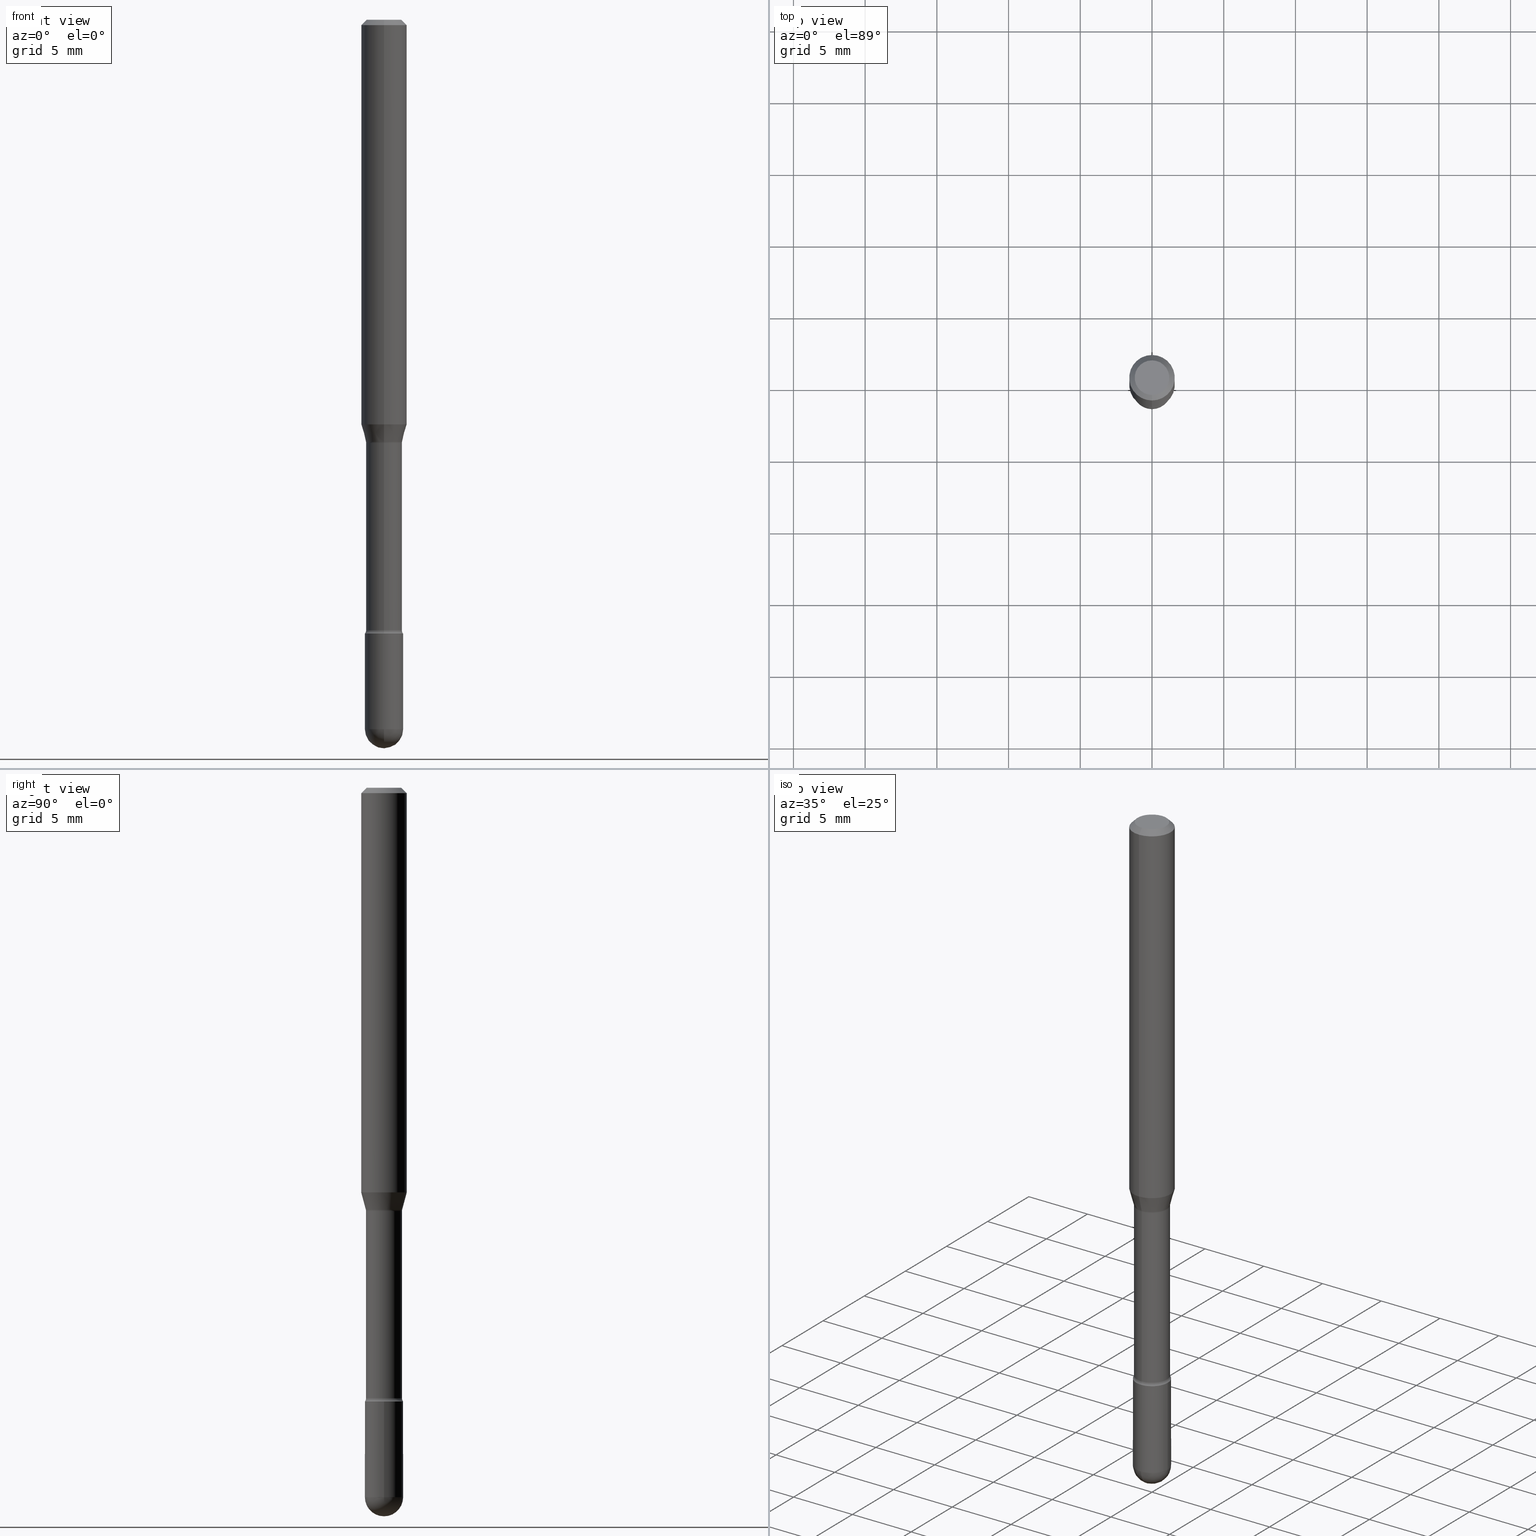
[diagram: canonical four-view strip — front | top / right | iso, engineering-drawing reading convention]
A machine part, canonical four-view strip (front | top / right | iso — engineering-drawing reading convention). The complete STEP part file that produces these views, byte-faithful:
ISO-10303-21;
HEADER;
FILE_DESCRIPTION (( 'STEP AP203' ),
    '1' );
FILE_NAME ('01607.STEP',
    '2024-04-09T20:08:57',
    ( '' ),
    ( '' ),
    'SwSTEP 2.0',
    'SolidWorks 2023',
    '' );
FILE_SCHEMA (( 'CONFIG_CONTROL_DESIGN' ));
ENDSEC;

DATA;
#1 = CARTESIAN_POINT ( 'NONE',  ( -1.169113584055446105E-44, 1.669184350826100908E-30, 4.780733988912460139E-16 ) ) ;
#2 = CARTESIAN_POINT ( 'NONE',  ( 3.666055405785701315E-16, 0.05249999999999411388, -1.685000000000000275 ) ) ;
#3 = ORIENTED_EDGE ( 'NONE', *, *, #530, .F. ) ;
#4 = DIRECTION ( 'NONE',  ( -1.807323732225323828E-15, -0.2588190451025172978, 0.9659258262890690894 ) ) ;
#5 = ADVANCED_FACE ( 'NONE', ( #303 ), #424, .T. ) ;
#6 = DIRECTION ( 'NONE',  ( -2.445419017493962135E-29, 3.491552639082703097E-15, 1.000000000000000000 ) ) ;
#7 = ORIENTED_EDGE ( 'NONE', *, *, #530, .T. ) ;
#8 = CIRCLE ( 'NONE', #218, 0.01500000000000001853 ) ;
#9 = DIRECTION ( 'NONE',  ( -6.982962677686265922E-15, -1.000000000000000000, 3.491552639082703097E-15 ) ) ;
#10 = DIMENSIONAL_EXPONENTS ( 1.000000000000000000, 0.000000000000000000, 0.000000000000000000, 0.000000000000000000, 0.000000000000000000, 0.000000000000000000, 0.000000000000000000 ) ;
#11 = ADVANCED_FACE ( 'NONE', ( #524 ), #273, .T. ) ;
#12 = ORIENTED_EDGE ( 'NONE', *, *, #94, .F. ) ;
#13 = DATE_AND_TIME ( #393, #283 ) ;
#14 = VECTOR ( 'NONE', #418, 39.37007874015748143 ) ;
#15 = APPLICATION_PROTOCOL_DEFINITION ( 'international standard', 'config_control_design', 1994, #286 ) ;
#16 = ADVANCED_FACE ( 'NONE', ( #566 ), #93, .T. ) ;
#17 = ORIENTED_EDGE ( 'NONE', *, *, #69, .F. ) ;
#18 = VERTEX_POINT ( 'NONE', #306 ) ;
#19 = ORIENTED_EDGE ( 'NONE', *, *, #90, .F. ) ;
#20 = DIRECTION ( 'NONE',  ( -2.445468806185136597E-29, 3.491481338843145583E-15, 1.000000000000000000 ) ) ;
#21 = EDGE_LOOP ( 'NONE', ( #528, #421, #219, #232 ) ) ;
#22 = CIRCLE ( 'NONE', #492, 0.05250000000000001887 ) ;
#23 = VERTEX_POINT ( 'NONE', #179 ) ;
#24 = TOROIDAL_SURFACE ( 'NONE', #34, 0.06435000000000000442, 0.01499999999999999424 ) ;
#25 = AXIS2_PLACEMENT_3D ( 'NONE', #251, #258, #429 ) ;
#26 = CARTESIAN_POINT ( 'NONE',  ( 4.762550500045553141E-29, -6.799659907397026191E-15, -1.947500000000000009 ) ) ;
#27 = ORIENTED_EDGE ( 'NONE', *, *, #69, .T. ) ;
#28 = CARTESIAN_POINT ( 'NONE',  ( 2.832021427887758735E-29, -4.043540930917242554E-15, -1.158092501787272965 ) ) ;
#29 = EDGE_CURVE ( 'NONE', #202, #407, #350, .T. ) ;
#30 = DIRECTION ( 'NONE',  ( -2.445419017493962696E-29, 3.491552639082703097E-15, 1.000000000000000000 ) ) ;
#31 = APPROVAL_STATUS ( 'not_yet_approved' ) ;
#32 = CARTESIAN_POINT ( 'NONE',  ( 2.023190811694401427E-45, -2.889378798979016049E-31, -8.274364531016640043E-17 ) ) ;
#33 = VECTOR ( 'NONE', #169, 39.37007874015748143 ) ;
#34 = AXIS2_PLACEMENT_3D ( 'NONE', #504, #114, #470 ) ;
#35 = CARTESIAN_POINT ( 'NONE',  ( 4.762550500045553141E-29, -6.799659907397026191E-15, -1.947500000000000009 ) ) ;
#36 = EDGE_CURVE ( 'NONE', #411, #57, #346, .T. ) ;
#37 = CARTESIAN_POINT ( 'NONE',  ( 3.730349362740937525E-16, 0.05249999999999412081, -1.685000000000000275 ) ) ;
#38 = DIRECTION ( 'NONE',  ( -6.982962677686265133E-15, -1.000000000000000000, 2.739457515990065205E-15 ) ) ;
#39 = DIRECTION ( 'NONE',  ( -6.982962677686265922E-15, -1.000000000000000000, 3.491552639082702703E-15 ) ) ;
#40 = DIRECTION ( 'NONE',  ( 2.445419017493962135E-29, -3.491552639082703097E-15, -1.000000000000000000 ) ) ;
#41 = AXIS2_PLACEMENT_3D ( 'NONE', #26, #20, #410 ) ;
#42 = ORIENTED_EDGE ( 'NONE', *, *, #79, .F. ) ;
#43 = DIRECTION ( 'NONE',  ( -6.982962677686266711E-15, -1.000000000000000000, 3.491552639082703097E-15 ) ) ;
#44 = DIRECTION ( 'NONE',  ( 1.000000000000000000, -7.105427357601001070E-15, 4.926316381718184256E-29 ) ) ;
#45 = LOCAL_TIME ( 16, 8, 57.00000000000000000, #506 ) ;
#46 = DIRECTION ( 'NONE',  ( -6.982962677686265133E-15, -1.000000000000000000, 2.767829780814856527E-15 ) ) ;
#47 = AXIS2_PLACEMENT_3D ( 'NONE', #35, #63, #325 ) ;
#48 = ORIENTED_EDGE ( 'NONE', *, *, #36, .F. ) ;
#49 = CIRCLE ( 'NONE', #313, 0.06250000000000000000 ) ;
#50 = ADVANCED_FACE ( 'NONE', ( #419 ), #213, .T. ) ;
#51 = CARTESIAN_POINT ( 'NONE',  ( 2.841515243112507928E-29, -4.057096135716831102E-15, -1.161974787463810665 ) ) ;
#52 = CARTESIAN_POINT ( 'NONE',  ( -4.493536483090706625E-16, -0.06435000000000590248, -1.675803397366418146 ) ) ;
#53 = MECHANICAL_CONTEXT ( 'NONE', #286, 'mechanical' ) ;
#54 = ORIENTED_EDGE ( 'NONE', *, *, #515, .F. ) ;
#55 = ORIENTED_EDGE ( 'NONE', *, *, #359, .T. ) ;
#56 = EDGE_CURVE ( 'NONE', #188, #315, #22, .T. ) ;
#57 = VERTEX_POINT ( 'NONE', #260 ) ;
#58 = AXIS2_PLACEMENT_3D ( 'NONE', #51, #138, #46 ) ;
#59 = ORIENTED_EDGE ( 'NONE', *, *, #249, .F. ) ;
#60 = DIRECTION ( 'NONE',  ( -6.982962677686262766E-15, -1.000000000000000000, 0.000000000000000000 ) ) ;
#61 = EDGE_LOOP ( 'NONE', ( #147, #341, #209, #476 ) ) ;
#62 = EDGE_LOOP ( 'NONE', ( #17, #328, #457, #19 ) ) ;
#63 = DIRECTION ( 'NONE',  ( -2.445468806185136597E-29, 3.491481338843145583E-15, 1.000000000000000000 ) ) ;
#64 = ORIENTED_EDGE ( 'NONE', *, *, #376, .F. ) ;
#65 = DATE_AND_TIME ( #468, #45 ) ;
#66 = CARTESIAN_POINT ( 'NONE',  ( 0.000000000000000000, 0.000000000000000000, 0.000000000000000000 ) ) ;
#67 = ORIENTED_EDGE ( 'NONE', *, *, #359, .F. ) ;
#68 = AXIS2_PLACEMENT_3D ( 'NONE', #206, #420, #38 ) ;
#69 = EDGE_CURVE ( 'NONE', #361, #229, #75, .T. ) ;
#70 = DIRECTION ( 'NONE',  ( -6.982962677686265133E-15, -1.000000000000000000, 2.739457515990065205E-15 ) ) ;
#71 = CIRCLE ( 'NONE', #142, 0.04986111260566397640 ) ;
#72 = CALENDAR_DATE ( 2024, 9, 4 ) ;
#73 = DIRECTION ( 'NONE',  ( -2.445419017493962696E-29, 3.491552639082703097E-15, 1.000000000000000000 ) ) ;
#74 = ORIENTED_EDGE ( 'NONE', *, *, #376, .T. ) ;
#75 = LINE ( 'NONE', #333, #501 ) ;
#76 = CARTESIAN_POINT ( 'NONE',  ( -4.364351673553645030E-16, -0.06250000000000388578, -1.110923531880468884 ) ) ;
#77 = ORIENTED_EDGE ( 'NONE', *, *, #176, .T. ) ;
#78 = CARTESIAN_POINT ( 'NONE',  ( 2.716673531842059463E-29, -3.878847989556329516E-15, -1.110923531880469106 ) ) ;
#79 = EDGE_CURVE ( 'NONE', #188, #357, #319, .T. ) ;
#80 = LINE ( 'NONE', #377, #275 ) ;
#81 = CARTESIAN_POINT ( 'NONE',  ( 4.572342504616528014E-16, 0.06434999999999593823, -1.161974787463811110 ) ) ;
#82 = MANIFOLD_SOLID_BREP ( 'Body-Move/Copy2[2]', #555 ) ;
#83 = CARTESIAN_POINT ( 'NONE',  ( 4.440892098500899305E-16, 0.06249999999999995143, -0.01500000000000030129 ) ) ;
#84 = DIRECTION ( 'NONE',  ( -6.982962677686265133E-15, -1.000000000000000000, 2.739457515990065205E-15 ) ) ;
#85 = DIRECTION ( 'NONE',  ( -6.982962677686265922E-15, -1.000000000000000000, 5.203519987931929940E-15 ) ) ;
#86 = MANIFOLD_SOLID_BREP ( 'Body-Move/Copy2[1]', #194 ) ;
#87 = CARTESIAN_POINT ( 'NONE',  ( -0.05249999999999999806, -5.968368045399809642E-15, -1.684999999999999831 ) ) ;
#88 = LOCAL_TIME ( 16, 8, 57.00000000000000000, #498 ) ;
#89 = ORIENTED_EDGE ( 'NONE', *, *, #373, .T. ) ;
#90 = EDGE_CURVE ( 'NONE', #229, #322, #183, .T. ) ;
#91 = CARTESIAN_POINT ( 'NONE',  ( 4.098124933558650876E-29, -5.851036289474794150E-15, -1.675803397366418368 ) ) ;
#92 = VECTOR ( 'NONE', #214, 39.37007874015748143 ) ;
#93 = SPHERICAL_SURFACE ( 'NONE', #288, 0.05250000000000001887 ) ;
#94 = EDGE_CURVE ( 'NONE', #358, #57, #489, .T. ) ;
#95 = FACE_OUTER_BOUND ( 'NONE', #225, .T. ) ;
#96 = CARTESIAN_POINT ( 'NONE',  ( 4.762550500045553141E-29, -6.799659907397026191E-15, -1.947500000000000009 ) ) ;
#97 = DIRECTION ( 'NONE',  ( -6.982962677686265922E-15, -1.000000000000000000, 3.491552639082703097E-15 ) ) ;
#98 = ADVANCED_FACE ( 'NONE', ( #436 ), #537, .T. ) ;
#99 = VERTEX_POINT ( 'NONE', #327 ) ;
#100 = DIRECTION ( 'NONE',  ( 0.000000000000000000, 0.000000000000000000, 1.000000000000000000 ) ) ;
#101 = AXIS2_PLACEMENT_3D ( 'NONE', #222, #447, #60 ) ;
#102 = CARTESIAN_POINT ( 'NONE',  ( -3.446092081437764548E-16, -0.04935000000000588222, -1.675803397366418146 ) ) ;
#103 = DIRECTION ( 'NONE',  ( -6.982962677686272233E-15, -1.000000000000000000, 0.000000000000000000 ) ) ;
#104 = ORIENTED_EDGE ( 'NONE', *, *, #120, .F. ) ;
#105 = LOCAL_TIME ( 16, 8, 57.00000000000000000, #110 ) ;
#106 =( CONVERSION_BASED_UNIT ( 'INCH', #437 ) LENGTH_UNIT ( ) NAMED_UNIT ( #10 ) );
#107 = EDGE_CURVE ( 'NONE', #544, #322, #80, .T. ) ;
#108 = ORIENTED_EDGE ( 'NONE', *, *, #554, .T. ) ;
#109 = AXIS2_PLACEMENT_3D ( 'NONE', #28, #458, #70 ) ;
#110 = COORDINATED_UNIVERSAL_TIME_OFFSET ( 5, 0, .BEHIND. ) ;
#111 = DIRECTION ( 'NONE',  ( -2.445468806185136597E-29, 3.491481338843145583E-15, 1.000000000000000000 ) ) ;
#112 = ORIENTED_EDGE ( 'NONE', *, *, #469, .F. ) ;
#113 = EDGE_LOOP ( 'NONE', ( #467, #276 ) ) ;
#114 = DIRECTION ( 'NONE',  ( -2.445419017493962696E-29, 3.491552639082703097E-15, 1.000000000000000000 ) ) ;
#115 = CALENDAR_DATE ( 2024, 9, 4 ) ;
#116 = CARTESIAN_POINT ( 'NONE',  ( -3.773273898774340269E-16, -0.04749999999999999362, 8.310510504626197352E-17 ) ) ;
#117 = PLANE ( 'NONE',  #265 ) ;
#118 = AXIS2_PLACEMENT_3D ( 'NONE', #535, #431, #220 ) ;
#119 = LINE ( 'NONE', #247, #563 ) ;
#120 = EDGE_CURVE ( 'NONE', #245, #167, #391, .T. ) ;
#121 = DATE_TIME_ROLE ( 'creation_date' ) ;
#122 = DIRECTION ( 'NONE',  ( -2.445419017493962696E-29, 3.491552639082703097E-15, 1.000000000000000000 ) ) ;
#123 = ORIENTED_EDGE ( 'NONE', *, *, #249, .T. ) ;
#124 = PRODUCT_DEFINITION_FORMATION_WITH_SPECIFIED_SOURCE ( 'ANY', '', #262, .NOT_KNOWN. ) ;
#125 = DIRECTION ( 'NONE',  ( -6.982962677686265133E-15, -1.000000000000000000, 5.535659561629709110E-15 ) ) ;
#126 = AXIS2_PLACEMENT_3D ( 'NONE', #198, #368, #551 ) ;
#127 = AXIS2_PLACEMENT_3D ( 'NONE', #263, #100, #349 ) ;
#128 = DIRECTION ( 'NONE',  ( -2.445468806185136597E-29, 3.491481338843145583E-15, 1.000000000000000000 ) ) ;
#129 = CC_DESIGN_DATE_AND_TIME_ASSIGNMENT ( #497, #121, ( #412 ) ) ;
#130 = CARTESIAN_POINT ( 'NONE',  ( 4.572342504616658176E-16, 0.06434999999999421738, -1.675803397366418590 ) ) ;
#131 = DIRECTION ( 'NONE',  ( 1.000000000000000000, -7.105427357601001070E-15, 4.926316381718184256E-29 ) ) ;
#132 = DESIGN_CONTEXT ( 'detailed design', #435, 'design' ) ;
#133 = SECURITY_CLASSIFICATION ( '', '', #149 ) ;
#134 = DIRECTION ( 'NONE',  ( -2.445419017493962696E-29, 3.491552639082703097E-15, 1.000000000000000000 ) ) ;
#135 = ORIENTED_EDGE ( 'NONE', *, *, #56, .F. ) ;
#136 = CARTESIAN_POINT ( 'NONE',  ( -4.364351673553916201E-16, -0.06250000000000000000, 6.962954388339150068E-16 ) ) ;
#137 = AXIS2_PLACEMENT_3D ( 'NONE', #305, #128, #345 ) ;
#138 = DIRECTION ( 'NONE',  ( -2.445419017493962696E-29, 3.491552639082703097E-15, 1.000000000000000000 ) ) ;
#139 = DIRECTION ( 'NONE',  ( -7.105427357601001070E-15, -1.000000000000000000, 0.000000000000000000 ) ) ;
#140 = APPLICATION_PROTOCOL_DEFINITION ( 'international standard', 'config_control_design', 1994, #435 ) ;
#141 = AXIS2_PLACEMENT_3D ( 'NONE', #2, #6, #9 ) ;
#142 = AXIS2_PLACEMENT_3D ( 'NONE', #173, #389, #266 ) ;
#143 = PERSON_AND_ORGANIZATION_ROLE ( 'creator' ) ;
#144 = DIRECTION ( 'NONE',  ( 2.445419017493962696E-29, -3.491552639082703097E-15, -1.000000000000000000 ) ) ;
#145 = ORIENTED_EDGE ( 'NONE', *, *, #543, .T. ) ;
#146 = ORIENTED_EDGE ( 'NONE', *, *, #385, .T. ) ;
#147 = ORIENTED_EDGE ( 'NONE', *, *, #231, .F. ) ;
#148 = CC_DESIGN_PERSON_AND_ORGANIZATION_ASSIGNMENT ( #310, #353, ( #262 ) ) ;
#149 = SECURITY_CLASSIFICATION_LEVEL ( 'unclassified' ) ;
#150 = CARTESIAN_POINT ( 'NONE',  ( 0.05249999999999999806, -6.708008522252392915E-15, -1.947500000000000009 ) ) ;
#151 = EDGE_LOOP ( 'NONE', ( #55, #237 ) ) ;
#152 = ORIENTED_EDGE ( 'NONE', *, *, #515, .T. ) ;
#153 = AXIS2_PLACEMENT_3D ( 'NONE', #91, #302, #43 ) ;
#154 = PERSON_AND_ORGANIZATION ( #564, #172 ) ;
#155 = EDGE_CURVE ( 'NONE', #452, #18, #460, .T. ) ;
#156 = CARTESIAN_POINT ( 'NONE',  ( 2.716673531842059463E-29, -3.878847989556329516E-15, -1.110923531880469106 ) ) ;
#157 = DIRECTION ( 'NONE',  ( -6.982962677686265922E-15, -1.000000000000000000, 4.370956789862821150E-15 ) ) ;
#158 = ADVANCED_FACE ( 'NONE', ( #510 ), #388, .F. ) ;
#159 = CARTESIAN_POINT ( 'NONE',  ( 4.762550500045553141E-29, -6.799659907397026191E-15, -1.947500000000000009 ) ) ;
#160 = TOROIDAL_SURFACE ( 'NONE', #153, 0.06435000000000005993, 0.01500000000000002373 ) ;
#161 = CARTESIAN_POINT ( 'NONE',  ( 4.893182423879369018E-29, -6.979747979838529872E-15, -2.000000000000000000 ) ) ;
#162 = ORIENTED_EDGE ( 'NONE', *, *, #231, .T. ) ;
#163 = CARTESIAN_POINT ( 'NONE',  ( 3.618438881858721251E-16, 0.04934999999999418324, -1.675803397366418590 ) ) ;
#164 = CARTESIAN_POINT ( 'NONE',  ( 4.120531044477326500E-29, -5.883266196854354565E-15, -1.684999999999999831 ) ) ;
#165 = CIRCLE ( 'NONE', #297, 0.04934999999999999803 ) ;
#166 = AXIS2_PLACEMENT_3D ( 'NONE', #182, #494, #97 ) ;
#167 = VERTEX_POINT ( 'NONE', #561 ) ;
#168 = DIRECTION ( 'NONE',  ( 1.000000000000000000, -6.982962677686268288E-15, 0.000000000000000000 ) ) ;
#169 = DIRECTION ( 'NONE',  ( -2.445419017493962696E-29, 3.491552639082703097E-15, 1.000000000000000000 ) ) ;
#170 = CARTESIAN_POINT ( 'NONE',  ( -1.169113584055446105E-44, 1.669184350826100908E-30, 4.780733988912460139E-16 ) ) ;
#171 = DIRECTION ( 'NONE',  ( 7.105427357601001859E-15, 1.000000000000000000, 0.000000000000000000 ) ) ;
#172 = ORGANIZATION ( 'UNSPECIFIED', 'UNSPECIFIED', '' ) ;
#173 = CARTESIAN_POINT ( 'NONE',  ( 2.832021427887758735E-29, -4.043540930917242554E-15, -1.158092501787272965 ) ) ;
#174 = VECTOR ( 'NONE', #531, 39.37007874015748143 ) ;
#175 = DIRECTION ( 'NONE',  ( 6.982962677686265133E-15, 1.000000000000000000, -5.203519987931927573E-15 ) ) ;
#176 = EDGE_CURVE ( 'NONE', #18, #452, #290, .T. ) ;
#177 = ORIENTED_EDGE ( 'NONE', *, *, #496, .F. ) ;
#178 = APPROVAL_DATE_TIME ( #13, #192 ) ;
#179 = CARTESIAN_POINT ( 'NONE',  ( -4.364351673553912750E-16, -0.06250000000000005551, -0.01499999999999986587 ) ) ;
#180 = ORIENTED_EDGE ( 'NONE', *, *, #430, .F. ) ;
#181 = ORIENTED_EDGE ( 'NONE', *, *, #496, .T. ) ;
#182 = CARTESIAN_POINT ( 'NONE',  ( 2.841573096316353332E-29, -4.057013286636126142E-15, -1.161974787463810888 ) ) ;
#183 = CIRCLE ( 'NONE', #58, 0.04934999999999999803 ) ;
#184 = CIRCLE ( 'NONE', #47, 0.05249999999999999806 ) ;
#185 = ADVANCED_FACE ( 'NONE', ( #195 ), #117, .T. ) ;
#186 = ORIENTED_EDGE ( 'NONE', *, *, #107, .F. ) ;
#187 = DIRECTION ( 'NONE',  ( -1.000000000000000000, 6.982962677686265922E-15, -4.883557194083112901E-29 ) ) ;
#188 = VERTEX_POINT ( 'NONE', #161 ) ;
#189 = ORIENTED_EDGE ( 'NONE', *, *, #120, .T. ) ;
#190 = ORIENTED_EDGE ( 'NONE', *, *, #223, .F. ) ;
#191 = APPROVAL_PERSON_ORGANIZATION ( #490, #192, #432 ) ;
#192 = APPROVAL ( #312, 'UNSPECIFIED' ) ;
#193 = DIRECTION ( 'NONE',  ( -2.445468806185136597E-29, 3.491481338843145583E-15, 1.000000000000000000 ) ) ;
#194 = CLOSED_SHELL ( 'NONE', ( #50, #347, #185, #16, #252 ) ) ;
#195 = FACE_OUTER_BOUND ( 'NONE', #151, .T. ) ;
#196 = CIRCLE ( 'NONE', #502, 0.04935000000000003273 ) ;
#197 = FACE_OUTER_BOUND ( 'NONE', #21, .T. ) ;
#198 = CARTESIAN_POINT ( 'NONE',  ( 4.120531044477326500E-29, -5.883266196854354565E-15, -1.684999999999999831 ) ) ;
#199 = ADVANCED_FACE ( 'NONE', ( #197 ), #239, .T. ) ;
#200 = DIRECTION ( 'NONE',  ( -2.445419017493962696E-29, 3.491552639082703097E-15, 1.000000000000000000 ) ) ;
#201 = ADVANCED_FACE ( 'NONE', ( #550 ), #24, .F. ) ;
#202 = VERTEX_POINT ( 'NONE', #451 ) ;
#203 = DIRECTION ( 'NONE',  ( -2.445419017493962696E-29, 3.491552639082703097E-15, 1.000000000000000000 ) ) ;
#204 = DIRECTION ( 'NONE',  ( -6.982962677686266711E-15, -1.000000000000000000, 3.491552639082704281E-15 ) ) ;
#205 = EDGE_LOOP ( 'NONE', ( #135, #402, #59, #459 ) ) ;
#206 = CARTESIAN_POINT ( 'NONE',  ( 2.832021427887758735E-29, -4.043540930917242554E-15, -1.158092501787272965 ) ) ;
#207 = DIRECTION ( 'NONE',  ( -2.445468806185136597E-29, 3.491481338843145583E-15, 1.000000000000000000 ) ) ;
#208 = AXIS2_PLACEMENT_3D ( 'NONE', #32, #203, #557 ) ;
#209 = ORIENTED_EDGE ( 'NONE', *, *, #269, .T. ) ;
#210 = CARTESIAN_POINT ( 'NONE',  ( 4.762550500045553141E-29, -6.799659907397026191E-15, -1.947500000000000009 ) ) ;
#211 = DIRECTION ( 'NONE',  ( -2.445419017493962696E-29, 3.491552639082703097E-15, 1.000000000000000000 ) ) ;
#212 = FACE_OUTER_BOUND ( 'NONE', #62, .T. ) ;
#213 = CYLINDRICAL_SURFACE ( 'NONE', #264, 0.05249999999999999806 ) ;
#214 = DIRECTION ( 'NONE',  ( -2.445468806185136877E-29, 3.491481338843145188E-15, 1.000000000000000000 ) ) ;
#215 = PLANE ( 'NONE',  #473 ) ;
#216 = CC_DESIGN_APPROVAL ( #304, ( #124 ) ) ;
#217 = EDGE_CURVE ( 'NONE', #358, #315, #184, .T. ) ;
#218 = AXIS2_PLACEMENT_3D ( 'NONE', #130, #44, #562 ) ;
#219 = ORIENTED_EDGE ( 'NONE', *, *, #269, .F. ) ;
#220 = DIRECTION ( 'NONE',  ( 6.982962677686265922E-15, 1.000000000000000000, -3.483106191921935554E-15 ) ) ;
#221 = CIRCLE ( 'NONE', #137, 0.05249999999999999806 ) ;
#222 = CARTESIAN_POINT ( 'NONE',  ( -4.493536483090827913E-16, -0.06435000000000405673, -1.161974787463810443 ) ) ;
#223 = EDGE_CURVE ( 'NONE', #322, #229, #165, .T. ) ;
#224 = COORDINATED_UNIVERSAL_TIME_OFFSET ( 5, 0, .BEHIND. ) ;
#225 = EDGE_LOOP ( 'NONE', ( #379, #162 ) ) ;
#226 =( NAMED_UNIT ( * ) PLANE_ANGLE_UNIT ( ) SI_UNIT ( $, .RADIAN. ) );
#227 = AXIS2_PLACEMENT_3D ( 'NONE', #210, #522, #384 ) ;
#228 = ORIENTED_EDGE ( 'NONE', *, *, #554, .F. ) ;
#229 = VERTEX_POINT ( 'NONE', #234 ) ;
#230 = PERSON_AND_ORGANIZATION ( #564, #172 ) ;
#231 = EDGE_CURVE ( 'NONE', #277, #242, #250, .T. ) ;
#232 = ORIENTED_EDGE ( 'NONE', *, *, #385, .F. ) ;
#233 = ORIENTED_EDGE ( 'NONE', *, *, #223, .T. ) ;
#234 = CARTESIAN_POINT ( 'NONE',  ( 3.506528400976504978E-16, 0.04934999999999594572, -1.161974787463810888 ) ) ;
#235 = ORIENTED_EDGE ( 'NONE', *, *, #543, .F. ) ;
#236 = EDGE_CURVE ( 'NONE', #242, #277, #446, .T. ) ;
#237 = ORIENTED_EDGE ( 'NONE', *, *, #36, .T. ) ;
#238 = DATE_AND_TIME ( #72, #105 ) ;
#239 = CYLINDRICAL_SURFACE ( 'NONE', #240, 0.06250000000000000000 ) ;
#240 = AXIS2_PLACEMENT_3D ( 'NONE', #279, #30, #334 ) ;
#241 = CIRCLE ( 'NONE', #546, 0.01500000000000001853 ) ;
#242 = VERTEX_POINT ( 'NONE', #371 ) ;
#243 = DATE_TIME_ROLE ( 'classification_date' ) ;
#244 = DIRECTION ( 'NONE',  ( -6.982962677686265922E-15, -1.000000000000000000, 4.370956789862821150E-15 ) ) ;
#245 = VERTEX_POINT ( 'NONE', #513 ) ;
#246 = APPROVAL_ROLE ( '' ) ;
#247 = CARTESIAN_POINT ( 'NONE',  ( 4.364351673553919652E-16, 0.06249999999999995143, -0.01500000000000030129 ) ) ;
#248 = DIRECTION ( 'NONE',  ( -1.000000000000000000, 6.982962677686265133E-15, -4.883557194083112340E-29 ) ) ;
#249 = EDGE_CURVE ( 'NONE', #99, #357, #556, .T. ) ;
#250 = CIRCLE ( 'NONE', #208, 0.04749999999999999362 ) ;
#251 = CARTESIAN_POINT ( 'NONE',  ( 4.098124933558650876E-29, -5.851036289474794150E-15, -1.675803397366418368 ) ) ;
#252 = ADVANCED_FACE ( 'NONE', ( #517 ), #466, .T. ) ;
#253 = FACE_OUTER_BOUND ( 'NONE', #505, .T. ) ;
#254 = ORIENTED_EDGE ( 'NONE', *, *, #527, .T. ) ;
#255 = LINE ( 'NONE', #257, #474 ) ;
#256 = AXIS2_PLACEMENT_3D ( 'NONE', #159, #248, #375 ) ;
#257 = CARTESIAN_POINT ( 'NONE',  ( -4.287811248607203282E-16, -0.06250000000000005551, -0.01499999999999986587 ) ) ;
#258 = DIRECTION ( 'NONE',  ( -2.445419017493962696E-29, 3.491552639082703097E-15, 1.000000000000000000 ) ) ;
#259 = DIRECTION ( 'NONE',  ( -1.000000000000000000, 6.982962677686265133E-15, -4.883557194083112340E-29 ) ) ;
#260 = CARTESIAN_POINT ( 'NONE',  ( 0.05249999999999999806, -6.249751596529228901E-15, -1.684999999999999831 ) ) ;
#261 = CARTESIAN_POINT ( 'NONE',  ( 0.05249999999999999806, -3.666055405785289629E-16, 2.559992807292866011E-30 ) ) ;
#262 = PRODUCT ( '01607', '01607', '', ( #53 ) ) ;
#263 = CARTESIAN_POINT ( 'NONE',  ( 0.000000000000000000, 0.000000000000000000, 0.000000000000000000 ) ) ;
#264 = AXIS2_PLACEMENT_3D ( 'NONE', #520, #207, #488 ) ;
#265 = AXIS2_PLACEMENT_3D ( 'NONE', #433, #394, #552 ) ;
#266 = DIRECTION ( 'NONE',  ( -6.982962677686265133E-15, -1.000000000000000000, 2.739457515990065205E-15 ) ) ;
#267 = AXIS2_PLACEMENT_3D ( 'NONE', #81, #131, #171 ) ;
#268 = ORIENTED_EDGE ( 'NONE', *, *, #56, .T. ) ;
#269 = EDGE_CURVE ( 'NONE', #23, #407, #348, .T. ) ;
#270 = EDGE_LOOP ( 'NONE', ( #42, #268, #289, #441 ) ) ;
#271 = FACE_OUTER_BOUND ( 'NONE', #427, .T. ) ;
#272 = CARTESIAN_POINT ( 'NONE',  ( 3.668128526240963907E-31, -5.237328958624083464E-17, -0.01500000000000008271 ) ) ;
#273 = CONICAL_SURFACE ( 'NONE', #521, 0.04986111260566397640, 0.2617993877991494078 ) ;
#274 = EDGE_CURVE ( 'NONE', #281, #202, #320, .T. ) ;
#275 = VECTOR ( 'NONE', #284, 39.37007874015748143 ) ;
#276 = ORIENTED_EDGE ( 'NONE', *, *, #155, .F. ) ;
#277 = VERTEX_POINT ( 'NONE', #116 ) ;
#278 = ORIENTED_EDGE ( 'NONE', *, *, #344, .T. ) ;
#279 = CARTESIAN_POINT ( 'NONE',  ( -1.169113584055446105E-44, 1.669184350826100908E-30, 4.780733988912460139E-16 ) ) ;
#280 = EDGE_CURVE ( 'NONE', #361, #544, #355, .T. ) ;
#281 = VERTEX_POINT ( 'NONE', #76 ) ;
#282 = DIRECTION ( 'NONE',  ( -6.982962677686265133E-15, -1.000000000000000000, 2.767829780814856527E-15 ) ) ;
#283 = LOCAL_TIME ( 16, 8, 57.00000000000000000, #224 ) ;
#284 = DIRECTION ( 'NONE',  ( -2.445419017493962696E-29, 3.491552639082703097E-15, 1.000000000000000000 ) ) ;
#285 = SHAPE_DEFINITION_REPRESENTATION ( #352, #422 ) ;
#286 = APPLICATION_CONTEXT ( 'configuration controlled 3d designs of mechanical parts and assemblies' ) ;
#287 = CARTESIAN_POINT ( 'NONE',  ( 3.666055405785766396E-16, 0.05249999999999320488, -1.947500000000000231 ) ) ;
#288 = AXIS2_PLACEMENT_3D ( 'NONE', #314, #259, #175 ) ;
#289 = ORIENTED_EDGE ( 'NONE', *, *, #217, .F. ) ;
#290 = CIRCLE ( 'NONE', #523, 0.05249999999999999806 ) ;
#291 = PERSON_AND_ORGANIZATION ( #564, #172 ) ;
#292 = ORIENTED_EDGE ( 'NONE', *, *, #442, .F. ) ;
#293 = CARTESIAN_POINT ( 'NONE',  ( -3.730349362740049563E-16, -0.05250000000000679817, -1.947499999999999565 ) ) ;
#294 = CARTESIAN_POINT ( 'NONE',  ( -3.446092081437888300E-16, -0.04935000000000405035, -1.161974787463810443 ) ) ;
#295 = LOCAL_TIME ( 16, 8, 57.00000000000000000, #363 ) ;
#296 = CYLINDRICAL_SURFACE ( 'NONE', #493, 0.04935000000000001191 ) ;
#297 = AXIS2_PLACEMENT_3D ( 'NONE', #549, #329, #282 ) ;
#298 = CONICAL_SURFACE ( 'NONE', #565, 0.06250000000000000000, 0.7853981633974483900 ) ;
#299 = CARTESIAN_POINT ( 'NONE',  ( -0.05249999999999999806, 3.730349362740525838E-16, -2.582440922383825311E-30 ) ) ;
#300 = ORIENTED_EDGE ( 'NONE', *, *, #29, .F. ) ;
#301 = EDGE_LOOP ( 'NONE', ( #300, #278, #146, #235 ) ) ;
#302 = DIRECTION ( 'NONE',  ( -2.445419017493962696E-29, 3.491552639082703097E-15, 1.000000000000000000 ) ) ;
#303 = FACE_OUTER_BOUND ( 'NONE', #301, .T. ) ;
#304 = APPROVAL ( #324, 'UNSPECIFIED' ) ;
#305 = CARTESIAN_POINT ( 'NONE',  ( 4.762550500045553141E-29, -6.799659907397026191E-15, -1.947500000000000009 ) ) ;
#306 = CARTESIAN_POINT ( 'NONE',  ( -3.666055405784878435E-16, -0.05250000000000587530, -1.684999999999999609 ) ) ;
#307 = CIRCLE ( 'NONE', #372, 0.06250000000000000000 ) ;
#308 = LINE ( 'NONE', #378, #340 ) ;
#309 = DIRECTION ( 'NONE',  ( 1.000000000000000000, -6.982962677686265922E-15, 4.883557194083112340E-29 ) ) ;
#310 = PERSON_AND_ORGANIZATION ( #564, #172 ) ;
#311 = AXIS2_PLACEMENT_3D ( 'NONE', #455, #200, #406 ) ;
#312 = APPROVAL_STATUS ( 'not_yet_approved' ) ;
#313 = AXIS2_PLACEMENT_3D ( 'NONE', #272, #491, #534 ) ;
#314 = CARTESIAN_POINT ( 'NONE',  ( 4.762550500045553141E-29, -6.799659907397026191E-15, -1.947500000000000009 ) ) ;
#315 = VERTEX_POINT ( 'NONE', #287 ) ;
#316 = CALENDAR_DATE ( 2024, 9, 4 ) ;
#317 = ORIENTED_EDGE ( 'NONE', *, *, #236, .F. ) ;
#318 = EDGE_LOOP ( 'NONE', ( #54, #189, #354, #356 ) ) ;
#319 = CIRCLE ( 'NONE', #390, 0.05250000000000001887 ) ;
#320 = CIRCLE ( 'NONE', #331, 0.06250000000000000000 ) ;
#321 = CARTESIAN_POINT ( 'NONE',  ( 4.120614938421955121E-29, -5.883146055950699741E-15, -1.684999999999999831 ) ) ;
#322 = VERTEX_POINT ( 'NONE', #294 ) ;
#323 = CARTESIAN_POINT ( 'NONE',  ( 4.098041497500830929E-29, -5.851155774658477044E-15, -1.675803397366418368 ) ) ;
#324 = APPROVAL_STATUS ( 'not_yet_approved' ) ;
#325 = DIRECTION ( 'NONE',  ( 1.000000000000000000, -6.982962677686268288E-15, 0.000000000000000000 ) ) ;
#326 = EDGE_CURVE ( 'NONE', #242, #407, #119, .T. ) ;
#327 = CARTESIAN_POINT ( 'NONE',  ( -0.05249999999999999806, -5.968368045399809642E-15, -1.947500000000000009 ) ) ;
#328 = ORIENTED_EDGE ( 'NONE', *, *, #280, .T. ) ;
#329 = DIRECTION ( 'NONE',  ( -2.445419017493962696E-29, 3.491552639082703097E-15, 1.000000000000000000 ) ) ;
#330 = AXIS2_PLACEMENT_3D ( 'NONE', #486, #525, #332 ) ;
#331 = AXIS2_PLACEMENT_3D ( 'NONE', #156, #509, #157 ) ;
#332 = DIRECTION ( 'NONE',  ( 1.000000000000000000, -6.982962677686268288E-15, 0.000000000000000000 ) ) ;
#333 = CARTESIAN_POINT ( 'NONE',  ( 3.506528400976094771E-16, 0.04935000000000001191, 3.057652761525145900E-16 ) ) ;
#334 = DIRECTION ( 'NONE',  ( -6.982962677686265922E-15, -1.000000000000000000, 3.491552639082702703E-15 ) ) ;
#335 = FACE_OUTER_BOUND ( 'NONE', #465, .T. ) ;
#336 = APPROVAL_PERSON_ORGANIZATION ( #230, #499, #369 ) ;
#337 = CYLINDRICAL_SURFACE ( 'NONE', #483, 0.04935000000000001191 ) ;
#338 = AXIS2_PLACEMENT_3D ( 'NONE', #1, #211, #39 ) ;
#339 = CONICAL_SURFACE ( 'NONE', #68, 0.04986111260566397640, 0.2617993877991494078 ) ;
#340 = VECTOR ( 'NONE', #519, 39.37007874015748854 ) ;
#341 = ORIENTED_EDGE ( 'NONE', *, *, #469, .T. ) ;
#342 = FACE_OUTER_BOUND ( 'NONE', #514, .T. ) ;
#343 = DIRECTION ( 'NONE',  ( -2.445419017493962696E-29, 3.491552639082703097E-15, 1.000000000000000000 ) ) ;
#344 = EDGE_CURVE ( 'NONE', #202, #281, #307, .T. ) ;
#345 = DIRECTION ( 'NONE',  ( 1.000000000000000000, -6.982962677686268288E-15, 0.000000000000000000 ) ) ;
#346 = CIRCLE ( 'NONE', #330, 0.05249999999999999806 ) ;
#347 = ADVANCED_FACE ( 'NONE', ( #413 ), #370, .T. ) ;
#348 = CIRCLE ( 'NONE', #425, 0.06250000000000000000 ) ;
#349 = DIRECTION ( 'NONE',  ( 1.000000000000000000, 0.000000000000000000, 0.000000000000000000 ) ) ;
#350 = LINE ( 'NONE', #439, #33 ) ;
#351 = CARTESIAN_POINT ( 'NONE',  ( 3.668128526240963907E-31, -5.237328958624083464E-17, -0.01500000000000008271 ) ) ;
#352 = PRODUCT_DEFINITION_SHAPE ( 'NONE', 'NONE',  #412 ) ;
#353 = PERSON_AND_ORGANIZATION_ROLE ( 'design_owner' ) ;
#354 = ORIENTED_EDGE ( 'NONE', *, *, #430, .T. ) ;
#355 = CIRCLE ( 'NONE', #417, 0.04935000000000003273 ) ;
#356 = ORIENTED_EDGE ( 'NONE', *, *, #344, .F. ) ;
#357 = VERTEX_POINT ( 'NONE', #293 ) ;
#358 = VERTEX_POINT ( 'NONE', #150 ) ;
#359 = EDGE_CURVE ( 'NONE', #57, #411, #512, .T. ) ;
#360 = CARTESIAN_POINT ( 'NONE',  ( 4.762550500045553141E-29, -6.799659907397026191E-15, -1.947500000000000009 ) ) ;
#361 = VERTEX_POINT ( 'NONE', #163 ) ;
#362 = ORIENTED_EDGE ( 'NONE', *, *, #485, .T. ) ;
#363 = COORDINATED_UNIVERSAL_TIME_OFFSET ( 5, 0, .BEHIND. ) ;
#364 =( GEOMETRIC_REPRESENTATION_CONTEXT ( 3 ) GLOBAL_UNCERTAINTY_ASSIGNED_CONTEXT ( ( #482 ) ) GLOBAL_UNIT_ASSIGNED_CONTEXT ( ( #106, #226, #541 ) ) REPRESENTATION_CONTEXT ( 'NONE', 'WORKASPACE' ) );
#365 = DIRECTION ( 'NONE',  ( -2.445419017493962696E-29, 3.491552639082703097E-15, 1.000000000000000000 ) ) ;
#366 = ORIENTED_EDGE ( 'NONE', *, *, #326, .T. ) ;
#367 = DIRECTION ( 'NONE',  ( 1.000000000000000000, -6.982962677686265922E-15, 4.876176775795935232E-29 ) ) ;
#368 = DIRECTION ( 'NONE',  ( -2.445419017493962696E-29, 3.491552639082703097E-15, 1.000000000000000000 ) ) ;
#369 = APPROVAL_ROLE ( '' ) ;
#370 = SPHERICAL_SURFACE ( 'NONE', #256, 0.05250000000000001887 ) ;
#371 = CARTESIAN_POINT ( 'NONE',  ( 3.840629472727447874E-16, 0.04749999999999999362, -2.485923956665947867E-16 ) ) ;
#372 = AXIS2_PLACEMENT_3D ( 'NONE', #78, #73, #244 ) ;
#373 = EDGE_CURVE ( 'NONE', #357, #358, #221, .T. ) ;
#374 = EDGE_LOOP ( 'NONE', ( #292, #438, #7, #77 ) ) ;
#375 = DIRECTION ( 'NONE',  ( 6.982962677686265133E-15, 1.000000000000000000, -5.203519987931927573E-15 ) ) ;
#376 = EDGE_CURVE ( 'NONE', #99, #411, #380, .T. ) ;
#377 = CARTESIAN_POINT ( 'NONE',  ( -3.446092081438173276E-16, -0.04935000000000001191, 6.503815216299775858E-16 ) ) ;
#378 = CARTESIAN_POINT ( 'NONE',  ( 3.542845135887372435E-16, 0.04986111260565993103, -1.158092501787273187 ) ) ;
#379 = ORIENTED_EDGE ( 'NONE', *, *, #236, .T. ) ;
#380 = LINE ( 'NONE', #299, #14 ) ;
#381 = DIRECTION ( 'NONE',  ( -2.445419017493962696E-29, 3.491552639082703097E-15, 1.000000000000000000 ) ) ;
#382 = CIRCLE ( 'NONE', #267, 0.01499999999999999424 ) ;
#383 = CC_DESIGN_DATE_AND_TIME_ASSIGNMENT ( #511, #243, ( #133 ) ) ;
#384 = DIRECTION ( 'NONE',  ( 1.000000000000000000, -6.982962677686268288E-15, 0.000000000000000000 ) ) ;
#385 = EDGE_CURVE ( 'NONE', #281, #23, #475, .T. ) ;
#386 = ADVANCED_FACE ( 'NONE', ( #342 ), #296, .T. ) ;
#387 = DIRECTION ( 'NONE',  ( -2.445419017493962696E-29, 3.491552639082703097E-15, 1.000000000000000000 ) ) ;
#388 = PLANE ( 'NONE',  #141 ) ;
#389 = DIRECTION ( 'NONE',  ( -2.445419017493962696E-29, 3.491552639082703097E-15, 1.000000000000000000 ) ) ;
#390 = AXIS2_PLACEMENT_3D ( 'NONE', #360, #392, #139 ) ;
#391 = CIRCLE ( 'NONE', #109, 0.04986111260566397640 ) ;
#392 = DIRECTION ( 'NONE',  ( -1.000000000000000000, 7.105427357601001070E-15, -4.926315508542082329E-29 ) ) ;
#393 = CALENDAR_DATE ( 2024, 9, 4 ) ;
#394 = DIRECTION ( 'NONE',  ( -2.438088387897960049E-29, 3.491481338843145188E-15, 1.000000000000000000 ) ) ;
#395 = FACE_OUTER_BOUND ( 'NONE', #448, .T. ) ;
#396 = ORIENTED_EDGE ( 'NONE', *, *, #94, .T. ) ;
#397 =( LENGTH_UNIT ( ) NAMED_UNIT ( * ) SI_UNIT ( $, .METRE. ) );
#398 = CC_DESIGN_SECURITY_CLASSIFICATION ( #133, ( #124 ) ) ;
#399 = ORIENTED_EDGE ( 'NONE', *, *, #527, .F. ) ;
#400 = CC_DESIGN_PERSON_AND_ORGANIZATION_ASSIGNMENT ( #154, #547, ( #124 ) ) ;
#401 = VECTOR ( 'NONE', #4, 39.37007874015748854 ) ;
#402 = ORIENTED_EDGE ( 'NONE', *, *, #79, .T. ) ;
#403 = PERSON_AND_ORGANIZATION_ROLE ( 'creator' ) ;
#404 = EDGE_LOOP ( 'NONE', ( #177, #228, #254, #233 ) ) ;
#405 = APPROVAL_DATE_TIME ( #65, #304 ) ;
#406 = DIRECTION ( 'NONE',  ( -6.982962677686266711E-15, -1.000000000000000000, 3.491552639082703492E-15 ) ) ;
#407 = VERTEX_POINT ( 'NONE', #83 ) ;
#408 = CIRCLE ( 'NONE', #227, 0.05249999999999999806 ) ;
#409 = TOROIDAL_SURFACE ( 'NONE', #166, 0.06435000000000000442, 0.01499999999999999424 ) ;
#410 = DIRECTION ( 'NONE',  ( 1.000000000000000000, -6.982962677686268288E-15, 0.000000000000000000 ) ) ;
#411 = VERTEX_POINT ( 'NONE', #87 ) ;
#412 = PRODUCT_DEFINITION ( 'UNKNOWN', '', #124, #132 ) ;
#413 = FACE_OUTER_BOUND ( 'NONE', #205, .T. ) ;
#414 = DIRECTION ( 'NONE',  ( -6.982962677686265922E-15, -1.000000000000000000, 3.483106191921935554E-15 ) ) ;
#415 = EDGE_CURVE ( 'NONE', #544, #361, #196, .T. ) ;
#416 = CC_DESIGN_PERSON_AND_ORGANIZATION_ASSIGNMENT ( #291, #403, ( #124 ) ) ;
#417 = AXIS2_PLACEMENT_3D ( 'NONE', #323, #122, #507 ) ;
#418 = DIRECTION ( 'NONE',  ( -2.445468806185136877E-29, 3.491481338843145188E-15, 1.000000000000000000 ) ) ;
#419 = FACE_OUTER_BOUND ( 'NONE', #542, .T. ) ;
#420 = DIRECTION ( 'NONE',  ( -2.445419017493962696E-29, 3.491552639082703097E-15, 1.000000000000000000 ) ) ;
#421 = ORIENTED_EDGE ( 'NONE', *, *, #29, .T. ) ;
#422 = ADVANCED_BREP_SHAPE_REPRESENTATION ( '01607', ( #86, #82, #127 ), #364 ) ;
#423 = CARTESIAN_POINT ( 'NONE',  ( 3.316907271900976096E-16, 0.04749999999999999362, 3.181612643411145129E-17 ) ) ;
#424 = CYLINDRICAL_SURFACE ( 'NONE', #338, 0.06250000000000000000 ) ;
#425 = AXIS2_PLACEMENT_3D ( 'NONE', #553, #365, #414 ) ;
#426 = DIRECTION ( 'NONE',  ( -2.445419017493962696E-29, 3.491552639082703097E-15, 1.000000000000000000 ) ) ;
#427 = EDGE_LOOP ( 'NONE', ( #104, #181, #453, #399 ) ) ;
#428 = DIRECTION ( 'NONE',  ( -4.851104656540964275E-15, -0.7071067811865500152, -0.7071067811865450192 ) ) ;
#429 = DIRECTION ( 'NONE',  ( -6.982962677686266711E-15, -1.000000000000000000, 3.491552639082703097E-15 ) ) ;
#430 = EDGE_CURVE ( 'NONE', #167, #281, #481, .T. ) ;
#431 = DIRECTION ( 'NONE',  ( 2.445419017493962696E-29, -3.491552639082703097E-15, -1.000000000000000000 ) ) ;
#432 = APPROVAL_ROLE ( '' ) ;
#433 = CARTESIAN_POINT ( 'NONE',  ( 4.120614938421955121E-29, -5.883146055950699741E-15, -1.684999999999999831 ) ) ;
#434 = AXIS2_PLACEMENT_3D ( 'NONE', #321, #111, #168 ) ;
#435 = APPLICATION_CONTEXT ( 'configuration controlled 3d designs of mechanical parts and assemblies' ) ;
#436 = FACE_OUTER_BOUND ( 'NONE', #61, .T. ) ;
#437 = LENGTH_MEASURE_WITH_UNIT ( LENGTH_MEASURE( 0.02539999999999999897 ), #397 );
#438 = ORIENTED_EDGE ( 'NONE', *, *, #415, .F. ) ;
#439 = CARTESIAN_POINT ( 'NONE',  ( 4.440892098500625669E-16, 0.06250000000000000000, 2.598513589485771196E-16 ) ) ;
#440 = CC_DESIGN_PERSON_AND_ORGANIZATION_ASSIGNMENT ( #539, #143, ( #412 ) ) ;
#441 = ORIENTED_EDGE ( 'NONE', *, *, #373, .F. ) ;
#442 = EDGE_CURVE ( 'NONE', #361, #452, #8, .T. ) ;
#443 = ADVANCED_FACE ( 'NONE', ( #253 ), #339, .T. ) ;
#444 = APPROVAL_PERSON_ORGANIZATION ( #454, #304, #246 ) ;
#445 = ORIENTED_EDGE ( 'NONE', *, *, #217, .T. ) ;
#446 = CIRCLE ( 'NONE', #311, 0.04749999999999999362 ) ;
#447 = DIRECTION ( 'NONE',  ( -1.000000000000000000, 6.982962677686265922E-15, -4.883557194083112901E-29 ) ) ;
#448 = EDGE_LOOP ( 'NONE', ( #112, #317, #366, #145 ) ) ;
#449 = ORIENTED_EDGE ( 'NONE', *, *, #442, .T. ) ;
#450 = PERSON_AND_ORGANIZATION_ROLE ( 'classification_officer' ) ;
#451 = CARTESIAN_POINT ( 'NONE',  ( 4.440892098500896347E-16, 0.06249999999999610728, -1.110923531880469328 ) ) ;
#452 = VERTEX_POINT ( 'NONE', #37 ) ;
#453 = ORIENTED_EDGE ( 'NONE', *, *, #90, .T. ) ;
#454 = PERSON_AND_ORGANIZATION ( #564, #172 ) ;
#455 = CARTESIAN_POINT ( 'NONE',  ( 2.023190811694401427E-45, -2.889378798979016049E-31, -8.274364531016640043E-17 ) ) ;
#456 = ADVANCED_FACE ( 'NONE', ( #335 ), #160, .F. ) ;
#457 = ORIENTED_EDGE ( 'NONE', *, *, #107, .T. ) ;
#458 = DIRECTION ( 'NONE',  ( -2.445419017493962696E-29, 3.491552639082703097E-15, 1.000000000000000000 ) ) ;
#459 = ORIENTED_EDGE ( 'NONE', *, *, #485, .F. ) ;
#460 = CIRCLE ( 'NONE', #126, 0.05249999999999999806 ) ;
#461 = TOROIDAL_SURFACE ( 'NONE', #25, 0.06435000000000005993, 0.01500000000000002373 ) ;
#462 = DIRECTION ( 'NONE',  ( 4.937700262164548042E-15, 0.7071067811865451302, -0.7071067811865499042 ) ) ;
#463 = ORIENTED_EDGE ( 'NONE', *, *, #280, .F. ) ;
#464 = ADVANCED_FACE ( 'NONE', ( #212 ), #337, .T. ) ;
#465 = EDGE_LOOP ( 'NONE', ( #463, #449, #540, #3 ) ) ;
#466 = CYLINDRICAL_SURFACE ( 'NONE', #545, 0.05249999999999999806 ) ;
#467 = ORIENTED_EDGE ( 'NONE', *, *, #176, .F. ) ;
#468 = CALENDAR_DATE ( 2024, 9, 4 ) ;
#469 = EDGE_CURVE ( 'NONE', #277, #23, #255, .T. ) ;
#470 = DIRECTION ( 'NONE',  ( -6.982962677686265922E-15, -1.000000000000000000, 3.491552639082703097E-15 ) ) ;
#471 = CC_DESIGN_APPROVAL ( #192, ( #412 ) ) ;
#472 = CARTESIAN_POINT ( 'NONE',  ( -3.481782883932353699E-16, -0.04986111260566802178, -1.158092501787272965 ) ) ;
#473 = AXIS2_PLACEMENT_3D ( 'NONE', #423, #40, #559 ) ;
#474 = VECTOR ( 'NONE', #428, 39.37007874015748143 ) ;
#475 = LINE ( 'NONE', #136, #174 ) ;
#476 = ORIENTED_EDGE ( 'NONE', *, *, #326, .F. ) ;
#477 = ADVANCED_FACE ( 'NONE', ( #95 ), #215, .F. ) ;
#478 = CARTESIAN_POINT ( 'NONE',  ( -1.169113584055446105E-44, 1.669184350826100908E-30, 4.780733988912460139E-16 ) ) ;
#479 = CARTESIAN_POINT ( 'NONE',  ( 2.832021427887758735E-29, -4.043540930917242554E-15, -1.158092501787272965 ) ) ;
#480 = CC_DESIGN_APPROVAL ( #499, ( #133 ) ) ;
#481 = LINE ( 'NONE', #472, #401 ) ;
#482 = UNCERTAINTY_MEASURE_WITH_UNIT (LENGTH_MEASURE( 1.000000000000000082E-05 ), #106, 'distance_accuracy_value', 'NONE');
#483 = AXIS2_PLACEMENT_3D ( 'NONE', #478, #387, #204 ) ;
#484 = ORIENTED_EDGE ( 'NONE', *, *, #415, .T. ) ;
#485 = EDGE_CURVE ( 'NONE', #315, #99, #408, .T. ) ;
#486 = CARTESIAN_POINT ( 'NONE',  ( 4.120614938421955121E-29, -5.883146055950699741E-15, -1.684999999999999831 ) ) ;
#487 = DIRECTION ( 'NONE',  ( -2.445419017493962696E-29, 3.491552639082703097E-15, 1.000000000000000000 ) ) ;
#488 = DIRECTION ( 'NONE',  ( 1.000000000000000000, -6.982962677686265922E-15, 4.876176775795935232E-29 ) ) ;
#489 = LINE ( 'NONE', #261, #92 ) ;
#490 = PERSON_AND_ORGANIZATION ( #564, #172 ) ;
#491 = DIRECTION ( 'NONE',  ( -2.445419017493962696E-29, 3.491552639082703097E-15, 1.000000000000000000 ) ) ;
#492 = AXIS2_PLACEMENT_3D ( 'NONE', #96, #309, #532 ) ;
#493 = AXIS2_PLACEMENT_3D ( 'NONE', #170, #343, #529 ) ;
#494 = DIRECTION ( 'NONE',  ( -2.445419017493962696E-29, 3.491552639082703097E-15, 1.000000000000000000 ) ) ;
#495 = CC_DESIGN_PERSON_AND_ORGANIZATION_ASSIGNMENT ( #508, #450, ( #133 ) ) ;
#496 = EDGE_CURVE ( 'NONE', #245, #229, #382, .T. ) ;
#497 = DATE_AND_TIME ( #316, #88 ) ;
#498 = COORDINATED_UNIVERSAL_TIME_OFFSET ( 5, 0, .BEHIND. ) ;
#499 = APPROVAL ( #31, 'UNSPECIFIED' ) ;
#500 = ORIENTED_EDGE ( 'NONE', *, *, #274, .F. ) ;
#501 = VECTOR ( 'NONE', #426, 39.37007874015748143 ) ;
#502 = AXIS2_PLACEMENT_3D ( 'NONE', #526, #487, #125 ) ;
#503 = ADVANCED_FACE ( 'NONE', ( #560 ), #461, .F. ) ;
#504 = CARTESIAN_POINT ( 'NONE',  ( 2.841573096316353332E-29, -4.057013286636126142E-15, -1.161974787463810888 ) ) ;
#505 = EDGE_LOOP ( 'NONE', ( #108, #152, #500, #180 ) ) ;
#506 = COORDINATED_UNIVERSAL_TIME_OFFSET ( 5, 0, .BEHIND. ) ;
#507 = DIRECTION ( 'NONE',  ( -6.982962677686265133E-15, -1.000000000000000000, 5.535659561629709110E-15 ) ) ;
#508 = PERSON_AND_ORGANIZATION ( #564, #172 ) ;
#509 = DIRECTION ( 'NONE',  ( -2.445419017493962696E-29, 3.491552639082703097E-15, 1.000000000000000000 ) ) ;
#510 = FACE_OUTER_BOUND ( 'NONE', #113, .T. ) ;
#511 = DATE_AND_TIME ( #115, #295 ) ;
#512 = CIRCLE ( 'NONE', #434, 0.05249999999999999806 ) ;
#513 = CARTESIAN_POINT ( 'NONE',  ( 3.991868617194136117E-16, 0.04986111260565993103, -1.158092501787273187 ) ) ;
#514 = EDGE_LOOP ( 'NONE', ( #484, #27, #190, #186 ) ) ;
#515 = EDGE_CURVE ( 'NONE', #245, #202, #308, .T. ) ;
#516 = APPROVAL_DATE_TIME ( #238, #499 ) ;
#517 = FACE_OUTER_BOUND ( 'NONE', #518, .T. ) ;
#518 = EDGE_LOOP ( 'NONE', ( #64, #123, #89, #396, #48 ) ) ;
#519 = DIRECTION ( 'NONE',  ( 1.839019923739594004E-15, 0.2588190451025240701, 0.9659258262890673130 ) ) ;
#520 = CARTESIAN_POINT ( 'NONE',  ( 0.000000000000000000, 0.000000000000000000, 0.000000000000000000 ) ) ;
#521 = AXIS2_PLACEMENT_3D ( 'NONE', #479, #381, #84 ) ;
#522 = DIRECTION ( 'NONE',  ( -2.445468806185136597E-29, 3.491481338843145583E-15, 1.000000000000000000 ) ) ;
#523 = AXIS2_PLACEMENT_3D ( 'NONE', #164, #134, #85 ) ;
#524 = FACE_OUTER_BOUND ( 'NONE', #318, .T. ) ;
#525 = DIRECTION ( 'NONE',  ( -2.445468806185136597E-29, 3.491481338843145583E-15, 1.000000000000000000 ) ) ;
#526 = CARTESIAN_POINT ( 'NONE',  ( 4.098041497500830929E-29, -5.851155774658477044E-15, -1.675803397366418368 ) ) ;
#527 = EDGE_CURVE ( 'NONE', #167, #322, #538, .T. ) ;
#528 = ORIENTED_EDGE ( 'NONE', *, *, #274, .T. ) ;
#529 = DIRECTION ( 'NONE',  ( -6.982962677686266711E-15, -1.000000000000000000, 3.491552639082704281E-15 ) ) ;
#530 = EDGE_CURVE ( 'NONE', #544, #18, #241, .T. ) ;
#531 = DIRECTION ( 'NONE',  ( -2.445419017493962696E-29, 3.491552639082703097E-15, 1.000000000000000000 ) ) ;
#532 = DIRECTION ( 'NONE',  ( 6.982962677686265133E-15, 1.000000000000000000, 0.000000000000000000 ) ) ;
#533 = ADVANCED_FACE ( 'NONE', ( #395 ), #298, .T. ) ;
#534 = DIRECTION ( 'NONE',  ( -6.982962677686265922E-15, -1.000000000000000000, 3.483106191921935554E-15 ) ) ;
#535 = CARTESIAN_POINT ( 'NONE',  ( 3.668128526240963907E-31, -5.237328958624083464E-17, -0.01500000000000008271 ) ) ;
#536 = DIRECTION ( 'NONE',  ( 6.982962677686265922E-15, 1.000000000000000000, -3.483106191921935554E-15 ) ) ;
#537 = CONICAL_SURFACE ( 'NONE', #118, 0.06250000000000000000, 0.7853981633974483900 ) ;
#538 = CIRCLE ( 'NONE', #101, 0.01499999999999999424 ) ;
#539 = PERSON_AND_ORGANIZATION ( #564, #172 ) ;
#540 = ORIENTED_EDGE ( 'NONE', *, *, #155, .T. ) ;
#541 =( NAMED_UNIT ( * ) SI_UNIT ( $, .STERADIAN. ) SOLID_ANGLE_UNIT ( ) );
#542 = EDGE_LOOP ( 'NONE', ( #362, #74, #67, #12, #445 ) ) ;
#543 = EDGE_CURVE ( 'NONE', #407, #23, #49, .T. ) ;
#544 = VERTEX_POINT ( 'NONE', #102 ) ;
#545 = AXIS2_PLACEMENT_3D ( 'NONE', #66, #193, #367 ) ;
#546 = AXIS2_PLACEMENT_3D ( 'NONE', #52, #187, #103 ) ;
#547 = PERSON_AND_ORGANIZATION_ROLE ( 'design_supplier' ) ;
#548 = ADVANCED_FACE ( 'NONE', ( #271 ), #409, .F. ) ;
#549 = CARTESIAN_POINT ( 'NONE',  ( 2.841515243112507928E-29, -4.057096135716831102E-15, -1.161974787463810665 ) ) ;
#550 = FACE_OUTER_BOUND ( 'NONE', #404, .T. ) ;
#551 = DIRECTION ( 'NONE',  ( -6.982962677686265922E-15, -1.000000000000000000, 5.203519987931929940E-15 ) ) ;
#552 = DIRECTION ( 'NONE',  ( 1.000000000000000000, -6.982962677686265922E-15, 4.876176775795935793E-29 ) ) ;
#553 = CARTESIAN_POINT ( 'NONE',  ( 3.668128526240963907E-31, -5.237328958624083464E-17, -0.01500000000000008271 ) ) ;
#554 = EDGE_CURVE ( 'NONE', #167, #245, #71, .T. ) ;
#555 = CLOSED_SHELL ( 'NONE', ( #548, #386, #456, #98, #199, #443, #11, #5, #533, #477, #158, #503, #464, #201 ) ) ;
#556 = CIRCLE ( 'NONE', #41, 0.05249999999999999806 ) ;
#557 = DIRECTION ( 'NONE',  ( -6.982962677686266711E-15, -1.000000000000000000, 3.491552639082703492E-15 ) ) ;
#558 = PRODUCT_RELATED_PRODUCT_CATEGORY ( 'detail', '', ( #262 ) ) ;
#559 = DIRECTION ( 'NONE',  ( 6.982962677686265922E-15, 1.000000000000000000, -3.491552639082703097E-15 ) ) ;
#560 = FACE_OUTER_BOUND ( 'NONE', #374, .T. ) ;
#561 = CARTESIAN_POINT ( 'NONE',  ( -3.481782883932353699E-16, -0.04986111260566802178, -1.158092501787272965 ) ) ;
#562 = DIRECTION ( 'NONE',  ( 7.105427357601001859E-15, 1.000000000000000000, 0.000000000000000000 ) ) ;
#563 = VECTOR ( 'NONE', #462, 39.37007874015748143 ) ;
#564 = PERSON ( 'UNSPECIFIED', 'UNSPECIFIED', 'UNSPECIFIED', ('UNSPECIFIED'), ('UNSPECIFIED'), ('UNSPECIFIED') ) ;
#565 = AXIS2_PLACEMENT_3D ( 'NONE', #351, #144, #536 ) ;
#566 = FACE_OUTER_BOUND ( 'NONE', #270, .T. ) ;
ENDSEC;
END-ISO-10303-21;
